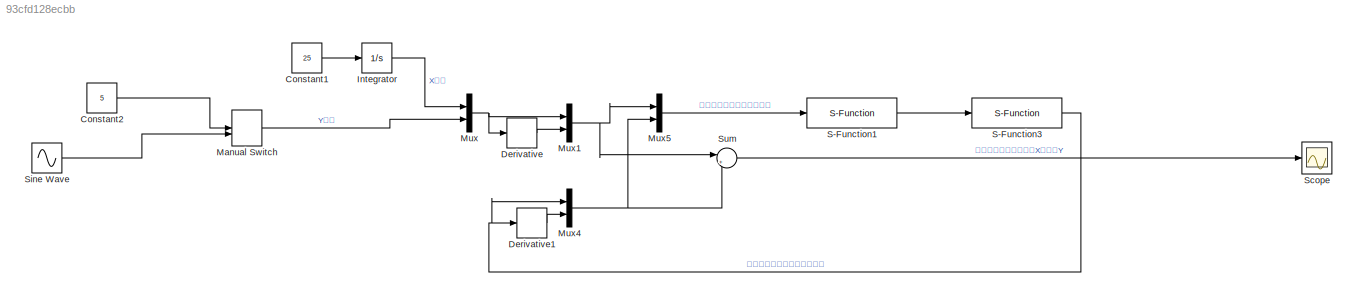
MODEL slx_93cfd128ecbb
KIND model
CONFIG AbsTol = auto
CONFIG EnableMultiTasking = off
CONFIG FixedStep = auto
CONFIG MaxStep = auto
CONFIG MinStep = auto
CONFIG RelTol = 1e-3
CONFIG SampleTimeConstraint = Unconstrained
CONFIG SolverName = VariableStepAuto
CONFIG StartTime = 0.0
CONFIG StopTime = 10
BLOCK [Constant] Constant1
  SampleTime = 0.001
  Value = 25
BLOCK [Constant] Constant2
  Value = 5
BLOCK [Derivative] Derivative
BLOCK [Derivative] Derivative1
BLOCK [Integrator] Integrator
BLOCK [ManualSwitch] Manual Switch
BLOCK [Mux] Mux
  DisplayOption = bar
  Inputs = 2
BLOCK [Mux] Mux1
  DisplayOption = bar
  Inputs = 2
BLOCK [Mux] Mux4
  DisplayOption = bar
  Inputs = 2
BLOCK [Mux] Mux5
  DisplayOption = bar
  Inputs = 2
BLOCK [S-Function] S-Function1
  EnableBusSupport = off
  FunctionName = nnadaptive_self
  SFcnIsStateOwnerBlock = off
  SFunctionDeploymentMode = off
BLOCK [S-Function] S-Function3
  EnableBusSupport = off
  FunctionName = model
  SFcnIsStateOwnerBlock = off
  SFunctionDeploymentMode = off
BLOCK [Scope] Scope
  Floating = off
  NumInputPorts = 1
  ScopeSpecificationString = Simulink.scopes.TimeScopeBlockCfg('CurrentConfiguration', extmgr.ConfigurationSet(extmgr.Configuration('Core','General UI',true),extmgr.Configuration('Core','Source UI',true),extmgr.Configuration('Sources','WiredSimulink',true,'DataLoggingVariableName','ScopeData1'),extmgr.Configuration('Visuals','Time Domain',true,'SerializedDisplays',{struct('MinYLimReal','-1','MaxYLimReal','4','YLabelReal','','...<+1643ch>
BLOCK [Sin] Sine Wave
  Amplitude = 4
  Frequency = 0.5
  SampleTime = 0
BLOCK [Sum] Sum
  Inputs = |+-
LINE Constant1:1 -> Integrator:1
LINE Constant2:1 -> Manual Switch:1
LINE Derivative1:1 -> Mux4:2
LINE Derivative:1 -> Mux1:2
LINE Integrator:1 -> Mux:1
LINE Manual Switch:1 -> Mux:2
NET Mux1:1 -> Mux5:1, Sum:1
NET Mux4:1 -> Mux5:2, Sum:2
LINE Mux5:1 -> S-Function1:1
NET Mux:1 -> Derivative:1, Mux1:1
LINE S-Function1:1 -> S-Function3:1
NET S-Function3:1 -> Derivative1:1, Mux4:1
LINE Sine Wave:1 -> Manual Switch:2
LINE Sum:1 -> Scope:1
note: NET lines group one-source signal fan-out (src -> all destinations, sorted); 1:1 wires keep LINE
